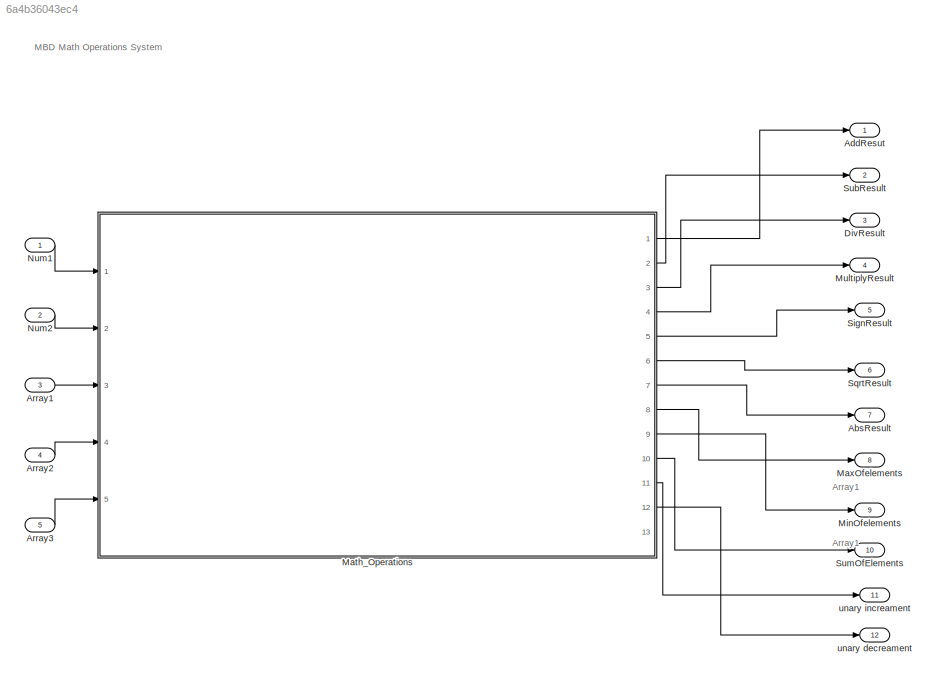
MODEL slx_6a4b36043ec4
KIND model
CONFIG AbsTol = auto
CONFIG EnableMultiTasking = off
CONFIG FixedStep = auto
CONFIG MaxStep = auto
CONFIG MinStep = auto
CONFIG RelTol = 1e-3
CONFIG SampleTimeConstraint = Unconstrained
CONFIG SolverName = VariableStepAuto
CONFIG StartTime = 0.0
CONFIG StopTime = 10.0
BLOCK [Outport] AbsResult
  Port = 7
BLOCK [Outport] AddResut
BLOCK [Inport] Array1
  Port = 3
BLOCK [Inport] Array2
  Port = 4
BLOCK [Inport] Array3
  Port = 5
BLOCK [Outport] DivResult
  Port = 3
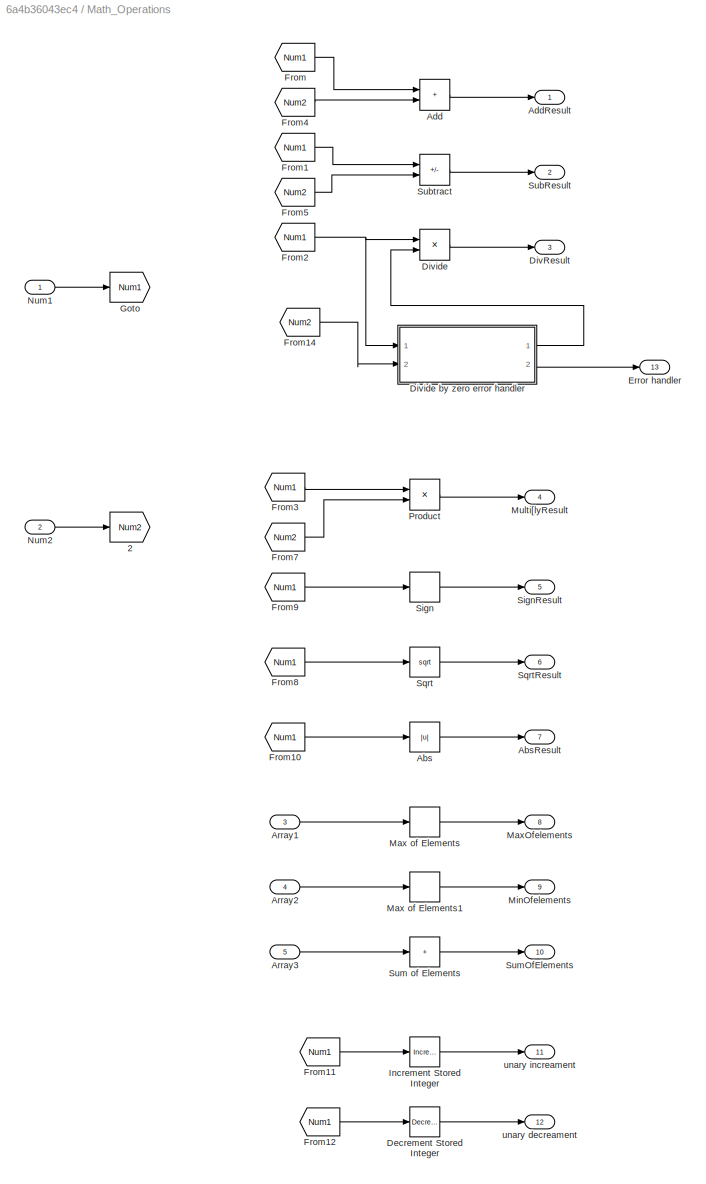
BLOCK [SubSystem] Math_Operations
  Ports = [5, 13]
  RequestExecContextInheritance = off
BLOCK [Goto] Math_Operations/2
  GotoTag = Num2
BLOCK [Abs] Math_Operations/Abs
  SaturateOnIntegerOverflow = off
BLOCK [Outport] Math_Operations/AbsResult
  Port = 7
BLOCK [Sum] Math_Operations/Add
  AccumDataTypeStr = uint8
  IconShape = rectangular
  Ports = [2, 1]
BLOCK [Outport] Math_Operations/AddResult
BLOCK [Inport] Math_Operations/Array1
  OutDataTypeStr = uint16
  Port = 3
  PortDimensions = 10
BLOCK [Inport] Math_Operations/Array2
  OutDataTypeStr = uint16
  Port = 4
  PortDimensions = 10
BLOCK [Inport] Math_Operations/Array3
  Port = 5
BLOCK [Reference] Math_Operations/Decrement Stored Integer  REF=simulink/Additional Math
& Discrete/Additional Math:
Increment - Decrement/Decrement
Stored Integer
  Ports = [1, 1]
  SourceBlock = simulink/Additional Math\n& Discrete/Additional Math:\nIncrement - Decrement/Decrement\nStored Integer
  SourceProductBaseCode = SL
  SourceType = Stored Integer Value Decrement
BLOCK [Outport] Math_Operations/DivResult
  Port = 3
BLOCK [Product] Math_Operations/Divide
  Inputs = */
  OutDataTypeStr = uint8
  Ports = [2, 1]
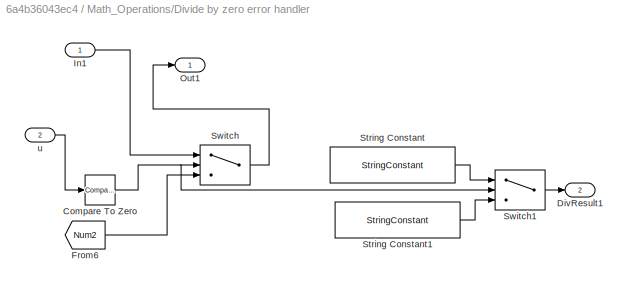
BLOCK [SubSystem] Math_Operations/Divide by zero error handler 
  Ports = [2, 2]
  RequestExecContextInheritance = off
BLOCK [Reference] Math_Operations/Divide by zero error handler /Compare To Zero  REF=simulink/Logic and Bit
Operations/Compare
To Zero
  Ports = [1, 1]
  SourceBlock = simulink/Logic and Bit\nOperations/Compare\nTo Zero
  SourceProductBaseCode = SL
  SourceType = Compare To Zero
BLOCK [Outport] Math_Operations/Divide by zero error handler /DivResult1
  Port = 2
BLOCK [From] Math_Operations/Divide by zero error handler /From6
  GotoTag = Num2
BLOCK [Inport] Math_Operations/Divide by zero error handler /In1
BLOCK [Outport] Math_Operations/Divide by zero error handler /Out1
BLOCK [StringConstant] Math_Operations/Divide by zero error handler /String Constant
  String = "Error!!! can't Divide by zero"
BLOCK [StringConstant] Math_Operations/Divide by zero error handler /String Constant1
  String = "operation Done"
BLOCK [Switch] Math_Operations/Divide by zero error handler /Switch
  Criteria = u2 > Threshold
  InputSameDT = off
  SaturateOnIntegerOverflow = off
BLOCK [Switch] Math_Operations/Divide by zero error handler /Switch1
  Criteria = u2 > Threshold
  InputSameDT = off
  SaturateOnIntegerOverflow = off
BLOCK [Inport] Math_Operations/Divide by zero error handler /u
  Port = 2
BLOCK [Outport] Math_Operations/Error handler
  Port = 13
BLOCK [From] Math_Operations/From
  GotoTag = Num1
BLOCK [From] Math_Operations/From1
  GotoTag = Num1
BLOCK [From] Math_Operations/From10
  GotoTag = Num1
BLOCK [From] Math_Operations/From11
  GotoTag = Num1
BLOCK [From] Math_Operations/From12
  GotoTag = Num1
BLOCK [From] Math_Operations/From14
  GotoTag = Num2
BLOCK [From] Math_Operations/From2
  GotoTag = Num1
BLOCK [From] Math_Operations/From3
  GotoTag = Num1
BLOCK [From] Math_Operations/From4
  GotoTag = Num2
BLOCK [From] Math_Operations/From5
  GotoTag = Num2
BLOCK [From] Math_Operations/From7
  GotoTag = Num2
BLOCK [From] Math_Operations/From8
  GotoTag = Num1
BLOCK [From] Math_Operations/From9
  GotoTag = Num1
BLOCK [Goto] Math_Operations/Goto
  GotoTag = Num1
BLOCK [Reference] Math_Operations/Increment Stored Integer  REF=simulink/Additional Math
& Discrete/Additional Math:
Increment - Decrement/Increment
Stored Integer
  Ports = [1, 1]
  SourceBlock = simulink/Additional Math\n& Discrete/Additional Math:\nIncrement - Decrement/Increment\nStored Integer
  SourceProductBaseCode = SL
  SourceType = Stored Integer Value Increment
BLOCK [MinMax] Math_Operations/Max of Elements
  Function = max
  Ports = [1, 1]
BLOCK [MinMax] Math_Operations/Max of Elements1
  OutDataTypeStr = uint16
  Ports = [1, 1]
BLOCK [Outport] Math_Operations/MaxOfelements
  Port = 8
BLOCK [Outport] Math_Operations/MinOfelements
  Port = 9
BLOCK [Outport] Math_Operations/Multi[lyResult
  Port = 4
BLOCK [Inport] Math_Operations/Num1
  OutDataTypeStr = uint8
BLOCK [Inport] Math_Operations/Num2
  OutDataTypeStr = uint8
  Port = 2
BLOCK [Product] Math_Operations/Product
  OutDataTypeStr = uint8
  Ports = [2, 1]
BLOCK [Signum] Math_Operations/Sign
BLOCK [Outport] Math_Operations/SignResult
  Port = 5
BLOCK [Sqrt] Math_Operations/Sqrt
BLOCK [Outport] Math_Operations/SqrtResult
  Port = 6
BLOCK [Outport] Math_Operations/SubResult
  Port = 2
BLOCK [Sum] Math_Operations/Subtract
  AccumDataTypeStr = int8
  IconShape = rectangular
  Inputs = +-
  Ports = [2, 1]
BLOCK [Sum] Math_Operations/Sum of Elements
  AccumDataTypeStr = uint16
  IconShape = rectangular
  Inputs = +
  Ports = [1, 1]
BLOCK [Outport] Math_Operations/SumOfElements
  Port = 10
BLOCK [Outport] Math_Operations/unary decreament
  Port = 12
BLOCK [Outport] Math_Operations/unary increament
  Port = 11
BLOCK [Outport] MaxOfelements
  Port = 8
BLOCK [Outport] MinOfelements
  Port = 9
BLOCK [Outport] MultiplyResult
  Port = 4
BLOCK [Inport] Num1
BLOCK [Inport] Num2
  Port = 2
BLOCK [Outport] SignResult
  Port = 5
BLOCK [Outport] SqrtResult
  Port = 6
BLOCK [Outport] SubResult
  Port = 2
BLOCK [Outport] SumOfElements
  Port = 10
BLOCK [Outport] unary decreament
  Port = 12
BLOCK [Outport] unary increament
  Port = 11
ANNOTATION (root): MBD Math Operations System
ANNOTATION (root): Array1
LINE Array1:1 -> Math_Operations:3
LINE Array2:1 -> Math_Operations:4
LINE Array3:1 -> Math_Operations:5
LINE Math_Operations/Abs:1 -> Math_Operations/AbsResult:1
LINE Math_Operations/Add:1 -> Math_Operations/AddResult:1
LINE Math_Operations/Array1:1 -> Math_Operations/Max of Elements:1
LINE Math_Operations/Array2:1 -> Math_Operations/Max of Elements1:1
LINE Math_Operations/Array3:1 -> Math_Operations/Sum of Elements:1
LINE Math_Operations/Decrement Stored Integer:1 -> Math_Operations/unary decreament:1
NET Math_Operations/Divide by zero error handler /Compare To Zero:1 -> Math_Operations/Divide by zero error handler /Switch1:2, Math_Operations/Divide by zero error handler /Switch:2
LINE Math_Operations/Divide by zero error handler /From6:1 -> Math_Operations/Divide by zero error handler /Switch:3
LINE Math_Operations/Divide by zero error handler /In1:1 -> Math_Operations/Divide by zero error handler /Switch:1
LINE Math_Operations/Divide by zero error handler /String Constant1:1 -> Math_Operations/Divide by zero error handler /Switch1:3
LINE Math_Operations/Divide by zero error handler /String Constant:1 -> Math_Operations/Divide by zero error handler /Switch1:1
LINE Math_Operations/Divide by zero error handler /Switch1:1 -> Math_Operations/Divide by zero error handler /DivResult1:1
LINE Math_Operations/Divide by zero error handler /Switch:1 -> Math_Operations/Divide by zero error handler /Out1:1
LINE Math_Operations/Divide by zero error handler /u:1 -> Math_Operations/Divide by zero error handler /Compare To Zero:1
LINE Math_Operations/Divide by zero error handler :1 -> Math_Operations/Divide:2
LINE Math_Operations/Divide by zero error handler :2 -> Math_Operations/Error handler:1
LINE Math_Operations/Divide:1 -> Math_Operations/DivResult:1
LINE Math_Operations/From10:1 -> Math_Operations/Abs:1
LINE Math_Operations/From11:1 -> Math_Operations/Increment Stored Integer:1
LINE Math_Operations/From12:1 -> Math_Operations/Decrement Stored Integer:1
LINE Math_Operations/From14:1 -> Math_Operations/Divide by zero error handler :2
LINE Math_Operations/From1:1 -> Math_Operations/Subtract:1
NET Math_Operations/From2:1 -> Math_Operations/Divide by zero error handler :1, Math_Operations/Divide:1
LINE Math_Operations/From3:1 -> Math_Operations/Product:1
LINE Math_Operations/From4:1 -> Math_Operations/Add:2
LINE Math_Operations/From5:1 -> Math_Operations/Subtract:2
LINE Math_Operations/From7:1 -> Math_Operations/Product:2
LINE Math_Operations/From8:1 -> Math_Operations/Sqrt:1
LINE Math_Operations/From9:1 -> Math_Operations/Sign:1
LINE Math_Operations/From:1 -> Math_Operations/Add:1
LINE Math_Operations/Increment Stored Integer:1 -> Math_Operations/unary increament:1
LINE Math_Operations/Max of Elements1:1 -> Math_Operations/MinOfelements:1
LINE Math_Operations/Max of Elements:1 -> Math_Operations/MaxOfelements:1
LINE Math_Operations/Num1:1 -> Math_Operations/Goto:1
LINE Math_Operations/Num2:1 -> Math_Operations/2:1
LINE Math_Operations/Product:1 -> Math_Operations/Multi[lyResult:1
LINE Math_Operations/Sign:1 -> Math_Operations/SignResult:1
LINE Math_Operations/Sqrt:1 -> Math_Operations/SqrtResult:1
LINE Math_Operations/Subtract:1 -> Math_Operations/SubResult:1
LINE Math_Operations/Sum of Elements:1 -> Math_Operations/SumOfElements:1
LINE Math_Operations:1 -> AddResut:1
LINE Math_Operations:10 -> SumOfElements:1
LINE Math_Operations:11 -> unary increament:1
LINE Math_Operations:12 -> unary decreament:1
LINE Math_Operations:2 -> SubResult:1
LINE Math_Operations:3 -> DivResult:1
LINE Math_Operations:4 -> MultiplyResult:1
LINE Math_Operations:5 -> SignResult:1
LINE Math_Operations:6 -> SqrtResult:1
LINE Math_Operations:7 -> AbsResult:1
LINE Math_Operations:8 -> MaxOfelements:1
LINE Math_Operations:9 -> MinOfelements:1
LINE Num1:1 -> Math_Operations:1
LINE Num2:1 -> Math_Operations:2
note: NET lines group one-source signal fan-out (src -> all destinations, sorted); 1:1 wires keep LINE
